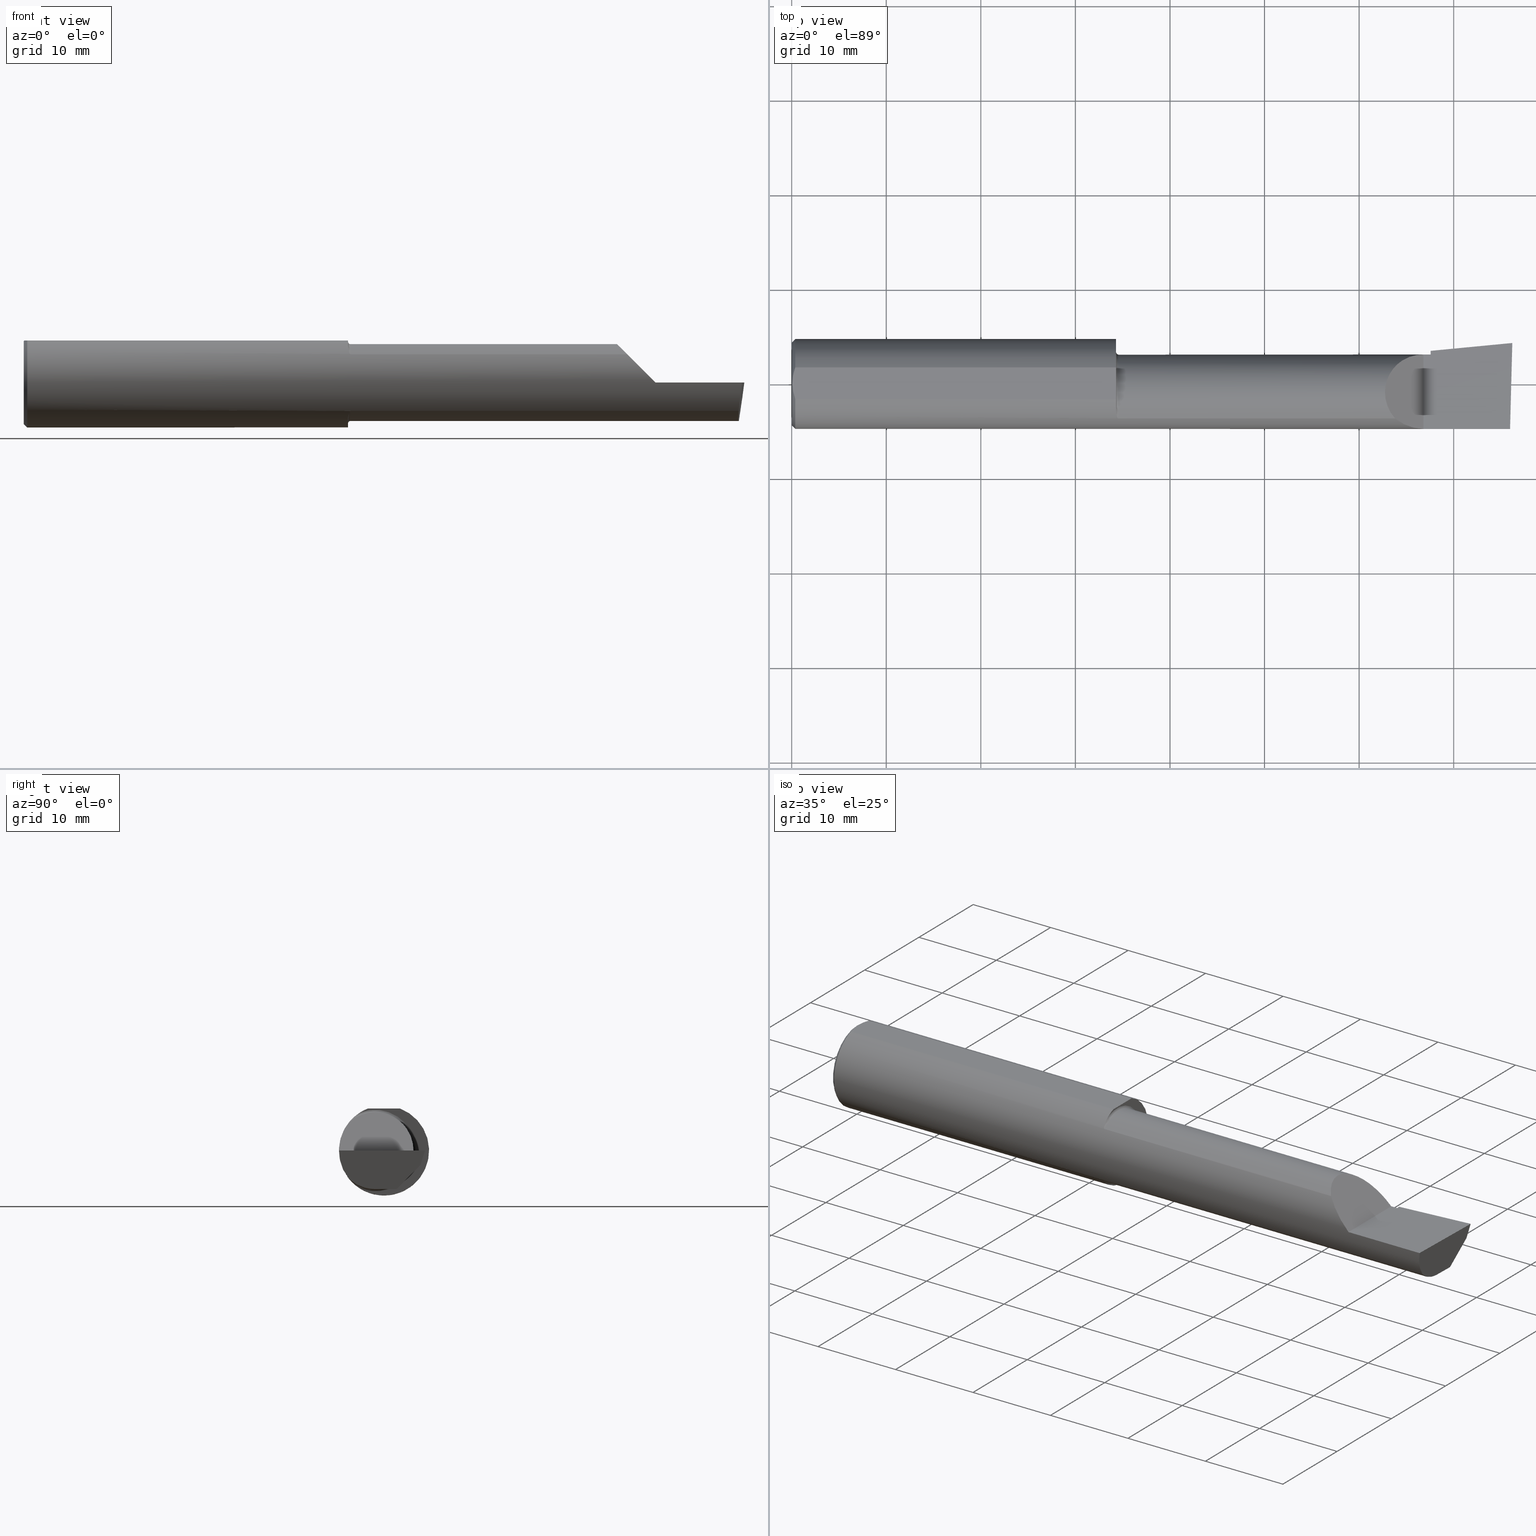
[diagram: canonical four-view strip — front | top / right | iso, engineering-drawing reading convention]
A machine part, canonical four-view strip (front | top / right | iso — engineering-drawing reading convention). The complete STEP part file that produces these views, byte-faithful:
ISO-10303-21;
HEADER;
FILE_DESCRIPTION (( 'STEP AP203' ),
    '1' );
FILE_NAME ('217531-B3601600.STEP',
    '2024-04-26T22:32:55',
    ( '' ),
    ( '' ),
    'SwSTEP 2.0',
    'SolidWorks 2022',
    '' );
FILE_SCHEMA (( 'CONFIG_CONTROL_DESIGN' ));
ENDSEC;

DATA;
#1 = MANIFOLD_SOLID_BREP ( 'Extrude7', #48 ) ;
#2 = EDGE_CURVE ( 'NONE', #203, #40, #349, .T. ) ;
#3 = DIRECTION ( 'NONE',  ( -5.691349986800549142E-18, -1.000000000000000000, 0.000000000000000000 ) ) ;
#4 = DIRECTION ( 'NONE',  ( 0.000000000000000000, -1.000000000000000000, 0.000000000000000000 ) ) ;
#5 = APPROVAL ( #492, 'UNSPECIFIED' ) ;
#6 = DIRECTION ( 'NONE',  ( -5.691349986800549142E-18, -1.000000000000000000, 0.000000000000000000 ) ) ;
#7 = VECTOR ( 'NONE', #227, 39.37007874015748143 ) ;
#8 = ORIENTED_EDGE ( 'NONE', *, *, #449, .T. ) ;
#9 = CARTESIAN_POINT ( 'NONE',  ( 0.000000000000000000, 0.06597272163553677404, 0.1753499999999999226 ) ) ;
#10 = CARTESIAN_POINT ( 'NONE',  ( 0.01499999999999997863, -0.06597272163553657975, 0.1753499999999999781 ) ) ;
#11 = ORIENTED_EDGE ( 'NONE', *, *, #2, .F. ) ;
#12 = DIRECTION ( 'NONE',  ( -0.000000000000000000, 1.000000000000000000, -0.000000000000000000 ) ) ;
#13 = ORIENTED_EDGE ( 'NONE', *, *, #267, .F. ) ;
#14 = ADVANCED_FACE ( 'NONE', ( #616 ), #475, .F. ) ;
#15 = COORDINATED_UNIVERSAL_TIME_OFFSET ( 8, 0, .BEHIND. ) ;
#16 = LINE ( 'NONE', #605, #473 ) ;
#17 = VERTEX_POINT ( 'NONE', #418 ) ;
#18 = AXIS2_PLACEMENT_3D ( 'NONE', #474, #246, #149 ) ;
#19 = CARTESIAN_POINT ( 'NONE',  ( 1.350000000000000311, 0.000000000000000000, 0.000000000000000000 ) ) ;
#20 = VECTOR ( 'NONE', #592, 39.37007874015748143 ) ;
#21 = ORIENTED_EDGE ( 'NONE', *, *, #480, .T. ) ;
#22 = COORDINATED_UNIVERSAL_TIME_OFFSET ( 8, 0, .BEHIND. ) ;
#23 = EDGE_CURVE ( 'NONE', #598, #398, #368, .T. ) ;
#24 = CARTESIAN_POINT ( 'NONE',  ( 0.003000000000000218638, 2.334609607045083916E-17, 0.1753499999999999781 ) ) ;
#25 = VERTEX_POINT ( 'NONE', #329 ) ;
#26 = DATE_AND_TIME ( #345, #85 ) ;
#27 = CARTESIAN_POINT ( 'NONE',  ( 1.350000000000000533, -0.1100056335683315678, 0.1520014681335478957 ) ) ;
#28 = PRODUCT_RELATED_PRODUCT_CATEGORY ( 'detail', '', ( #135 ) ) ;
#29 = ORIENTED_EDGE ( 'NONE', *, *, #156, .T. ) ;
#30 = PRODUCT_DEFINITION_FORMATION_WITH_SPECIFIED_SOURCE ( 'ANY', '', #135, .NOT_KNOWN. ) ;
#31 = CARTESIAN_POINT ( 'NONE',  ( 1.352858161161657025, -0.1330631366558194806, -0.1319833113027350791 ) ) ;
#32 = VERTEX_POINT ( 'NONE', #614 ) ;
#33 = DIRECTION ( 'NONE',  ( 1.000000000000000000, 0.000000000000000000, 0.000000000000000000 ) ) ;
#34 = B_SPLINE_CURVE_WITH_KNOTS ( 'NONE', 3,
 ( #232, #422, #221, #374, #326, #145 ),
 .UNSPECIFIED., .F., .F.,
 ( 4, 2, 4 ),
 ( 0.001779942938356815062, 0.002629978419973711019, 0.003480013901590607410 ),
 .UNSPECIFIED. ) ;
#35 = EDGE_LOOP ( 'NONE', ( #444, #138 ) ) ;
#36 = EDGE_CURVE ( 'NONE', #611, #228, #567, .T. ) ;
#37 = CARTESIAN_POINT ( 'NONE',  ( 2.629999999999999893, 0.1226499999999998147, -1.592040838891560883E-17 ) ) ;
#38 = ORIENTED_EDGE ( 'NONE', *, *, #508, .T. ) ;
#39 = DIRECTION ( 'NONE',  ( 0.000000000000000000, 0.000000000000000000, 1.000000000000000000 ) ) ;
#40 = VERTEX_POINT ( 'NONE', #225 ) ;
#41 = ORIENTED_EDGE ( 'NONE', *, *, #595, .T. ) ;
#42 = CARTESIAN_POINT ( 'NONE',  ( 1.354992410154055804, -0.1399157128067677891, -0.1246181391956572848 ) ) ;
#43 = ADVANCED_FACE ( 'NONE', ( #515 ), #365, .F. ) ;
#44 = CARTESIAN_POINT ( 'NONE',  ( 1.360000000000000320, -0.1454917112299459747, 0.1180346748349057201 ) ) ;
#45 = VERTEX_POINT ( 'NONE', #44 ) ;
#46 = DIRECTION ( 'NONE',  ( -1.000000000000000000, -0.000000000000000000, -0.000000000000000000 ) ) ;
#47 = DIRECTION ( 'NONE',  ( 0.000000000000000000, -1.000000000000000000, 0.000000000000000000 ) ) ;
#48 = CLOSED_SHELL ( 'NONE', ( #536, #120, #487, #304, #331, #14, #43, #529, #414, #518, #93, #439, #259, #539, #53, #87, #583 ) ) ;
#49 = ORIENTED_EDGE ( 'NONE', *, *, #77, .T. ) ;
#50 = DIRECTION ( 'NONE',  ( 0.000000000000000000, 0.2936076258024052921, 0.9559260233253797923 ) ) ;
#51 = APPROVAL_PERSON_ORGANIZATION ( #260, #186, #596 ) ;
#52 = CARTESIAN_POINT ( 'NONE',  ( 2.009999999999999787, -0.1454917112299465021, 0.1180346748349054287 ) ) ;
#53 = ADVANCED_FACE ( 'NONE', ( #416 ), #233, .T. ) ;
#54 = LINE ( 'NONE', #293, #522 ) ;
#55 = LINE ( 'NONE', #624, #525 ) ;
#56 = CC_DESIGN_PERSON_AND_ORGANIZATION_ASSIGNMENT ( #313, #266, ( #30 ) ) ;
#57 = DIRECTION ( 'NONE',  ( 0.000000000000000000, 0.000000000000000000, 1.000000000000000000 ) ) ;
#58 = FACE_OUTER_BOUND ( 'NONE', #308, .T. ) ;
#59 = B_SPLINE_CURVE_WITH_KNOTS ( 'NONE', 3,
 ( #24, #116, #253, #268, #360, #558 ),
 .UNSPECIFIED., .F., .F.,
 ( 4, 2, 4 ),
 ( 0.003480013901590607410, 0.004330767971208085432, 0.005181522040825563453 ),
 .UNSPECIFIED. ) ;
#60 = CARTESIAN_POINT ( 'NONE',  ( 2.659999999999999698, 0.04400172171466197601, -0.1378033461200733056 ) ) ;
#61 = PLANE ( 'NONE',  #547 ) ;
#62 = AXIS2_PLACEMENT_3D ( 'NONE', #296, #342, #50 ) ;
#63 = ORIENTED_EDGE ( 'NONE', *, *, #276, .T. ) ;
#64 = DATE_AND_TIME ( #208, #513 ) ;
#65 = DIRECTION ( 'NONE',  ( 1.000000000000000000, 0.000000000000000000, 0.000000000000000000 ) ) ;
#66 = EDGE_CURVE ( 'NONE', #166, #254, #413, .T. ) ;
#67 = VECTOR ( 'NONE', #483, 39.37007874015748143 ) ;
#68 = PERSON_AND_ORGANIZATION_ROLE ( 'design_supplier' ) ;
#69 = CARTESIAN_POINT ( 'NONE',  ( 1.350000000000000311, -0.06597272163553659363, 0.1753499999999999781 ) ) ;
#70 = ORIENTED_EDGE ( 'NONE', *, *, #194, .T. ) ;
#71 = CARTESIAN_POINT ( 'NONE',  ( 1.360000000000000320, -0.03739999999999999575, 0.000000000000000000 ) ) ;
#72 = ORIENTED_EDGE ( 'NONE', *, *, #338, .F. ) ;
#73 = EDGE_CURVE ( 'NONE', #611, #501, #510, .T. ) ;
#74 = DATE_AND_TIME ( #217, #376 ) ;
#75 = CARTESIAN_POINT ( 'NONE',  ( 0.000000000000000000, 0.000000000000000000, 0.000000000000000000 ) ) ;
#76 = ORIENTED_EDGE ( 'NONE', *, *, #279, .T. ) ;
#77 = EDGE_CURVE ( 'NONE', #305, #344, #424, .T. ) ;
#78 = APPROVAL_DATE_TIME ( #591, #248 ) ;
#79 = CARTESIAN_POINT ( 'NONE',  ( 2.990625440078235275, -0.1873499999999999888, -6.696573958807117964E-17 ) ) ;
#80 = ORIENTED_EDGE ( 'NONE', *, *, #77, .F. ) ;
#81 =( BOUNDED_CURVE ( )  B_SPLINE_CURVE ( 3, ( #608, #178, #568, #37 ),
 .UNSPECIFIED., .F., .T. ) 
 B_SPLINE_CURVE_WITH_KNOTS ( ( 4, 4 ),
 ( 5.541729662751376573, 7.853981633974482790 ),
 .UNSPECIFIED. ) 
 CURVE ( )  GEOMETRIC_REPRESENTATION_ITEM ( )  RATIONAL_B_SPLINE_CURVE ( ( 1.000000000000000000, 0.6019254882129692064, 0.6019254882129692064, 1.000000000000000000 ) ) 
 REPRESENTATION_ITEM ( '' )  );
#82 = AXIS2_PLACEMENT_3D ( 'NONE', #523, #526, #285 ) ;
#83 = CARTESIAN_POINT ( 'NONE',  ( 2.974910817315466360, -0.03674301662998789159, -0.1600499999999999701 ) ) ;
#84 = ORIENTED_EDGE ( 'NONE', *, *, #133, .T. ) ;
#85 = LOCAL_TIME ( 15, 32, 55.00000000000000000, #122 ) ;
#86 = CARTESIAN_POINT ( 'NONE',  ( 1.357567572594822414, -0.1442269357022583354, -0.1195781817710035860 ) ) ;
#87 = ADVANCED_FACE ( 'NONE', ( #281 ), #469, .F. ) ;
#88 = DIRECTION ( 'NONE',  ( 1.000000000000000000, -5.691349986800549142E-18, 0.000000000000000000 ) ) ;
#89 = LINE ( 'NONE', #465, #7 ) ;
#90 = DIRECTION ( 'NONE',  ( 1.000000000000000000, -5.691349986800549142E-18, 0.000000000000000000 ) ) ;
#91 = DIRECTION ( 'NONE',  ( -0.02617694830786920432, -0.9996573249755573709, 0.000000000000000000 ) ) ;
#92 = CARTESIAN_POINT ( 'NONE',  ( 9.109005653874781230E-19, 0.1226499999999999535, 3.563723795045361633E-16 ) ) ;
#93 = ADVANCED_FACE ( 'NONE', ( #58 ), #206, .F. ) ;
#94 = EDGE_LOOP ( 'NONE', ( #550, #11, #222 ) ) ;
#95 =( GEOMETRIC_REPRESENTATION_CONTEXT ( 3 ) GLOBAL_UNCERTAINTY_ASSIGNED_CONTEXT ( ( #580 ) ) GLOBAL_UNIT_ASSIGNED_CONTEXT ( ( #241, #576, #427 ) ) REPRESENTATION_CONTEXT ( 'NONE', 'WORKASPACE' ) );
#96 = CARTESIAN_POINT ( 'NONE',  ( 1.350000000000000311, -0.1013606951871662831, -0.1575627873933891920 ) ) ;
#97 = CARTESIAN_POINT ( 'NONE',  ( 2.629999999999999893, -0.1873499999999999888, -1.592040838891560883E-17 ) ) ;
#98 = LINE ( 'NONE', #151, #330 ) ;
#99 = VERTEX_POINT ( 'NONE', #10 ) ;
#100 =( LENGTH_UNIT ( ) NAMED_UNIT ( * ) SI_UNIT ( $, .METRE. ) );
#101 = CARTESIAN_POINT ( 'NONE',  ( 1.350000000000000311, -0.1013606951871662831, -0.1575627873933891920 ) ) ;
#102 = APPLICATION_CONTEXT ( 'configuration controlled 3d designs of mechanical parts and assemblies' ) ;
#103 = DIRECTION ( 'NONE',  ( -3.962974135542377331E-18, -0.6963153109074924352, -0.7177360153954949196 ) ) ;
#104 = AXIS2_PLACEMENT_3D ( 'NONE', #626, #478, #622 ) ;
#105 = CARTESIAN_POINT ( 'NONE',  ( 1.350000000000000311, -0.03739999999999999575, 0.000000000000000000 ) ) ;
#106 = CARTESIAN_POINT ( 'NONE',  ( 3.011712141217646188, 0.1533490680423130192, -0.06000000000000001166 ) ) ;
#107 = DIRECTION ( 'NONE',  ( -1.000000000000000000, -0.000000000000000000, -0.000000000000000000 ) ) ;
#108 = CARTESIAN_POINT ( 'NONE',  ( 2.629999999999999893, -0.1873499999999999888, -1.592040838891560883E-17 ) ) ;
#109 = EDGE_CURVE ( 'NONE', #113, #598, #252, .T. ) ;
#110 = PERSON_AND_ORGANIZATION_ROLE ( 'classification_officer' ) ;
#111 = CARTESIAN_POINT ( 'NONE',  ( 2.659999999999999698, 0.02241901528670508376, -0.1600499999999999701 ) ) ;
#112 = APPROVAL_PERSON_ORGANIZATION ( #114, #248, #554 ) ;
#113 = VERTEX_POINT ( 'NONE', #150 ) ;
#114 = PERSON_AND_ORGANIZATION ( #295, #247 ) ;
#115 = AXIS2_PLACEMENT_3D ( 'NONE', #19, #400, #599 ) ;
#116 = CARTESIAN_POINT ( 'NONE',  ( 0.003000000000000172234, 0.01127363201155565098, 0.1753499999999999781 ) ) ;
#117 = VECTOR ( 'NONE', #383, 39.37007874015748143 ) ;
#118 = ORIENTED_EDGE ( 'NONE', *, *, #595, .F. ) ;
#119 = CYLINDRICAL_SURFACE ( 'NONE', #179, 0.1873499999999999888 ) ;
#120 = ADVANCED_FACE ( 'NONE', ( #154 ), #61, .T. ) ;
#121 = VERTEX_POINT ( 'NONE', #101 ) ;
#122 = COORDINATED_UNIVERSAL_TIME_OFFSET ( 8, 0, .BEHIND. ) ;
#123 = LINE ( 'NONE', #283, #625 ) ;
#124 = ORIENTED_EDGE ( 'NONE', *, *, #109, .F. ) ;
#125 = AXIS2_PLACEMENT_3D ( 'NONE', #189, #460, #182 ) ;
#126 = CC_DESIGN_DATE_AND_TIME_ASSIGNMENT ( #26, #157, ( #191 ) ) ;
#127 = APPROVAL_STATUS ( 'not_yet_approved' ) ;
#128 = DIRECTION ( 'NONE',  ( 1.000000000000000000, -5.691349986800549142E-18, 0.000000000000000000 ) ) ;
#129 = ORIENTED_EDGE ( 'NONE', *, *, #324, .F. ) ;
#130 = CARTESIAN_POINT ( 'NONE',  ( 1.356216587669451412, -0.1423502170013163648, 0.1218111458006551073 ) ) ;
#131 = ORIENTED_EDGE ( 'NONE', *, *, #312, .F. ) ;
#132 = AXIS2_PLACEMENT_3D ( 'NONE', #136, #561, #47 ) ;
#133 = EDGE_CURVE ( 'NONE', #254, #498, #176, .T. ) ;
#134 = FACE_OUTER_BOUND ( 'NONE', #372, .T. ) ;
#135 = PRODUCT ( '217531-B3601600', '217531-B3601600', '', ( #263 ) ) ;
#136 = CARTESIAN_POINT ( 'NONE',  ( 2.659999999999999698, -0.03740000000000000269, 0.000000000000000000 ) ) ;
#137 = DIRECTION ( 'NONE',  ( -5.691349986800549142E-18, -1.000000000000000000, 1.438723400918613551E-16 ) ) ;
#138 = ORIENTED_EDGE ( 'NONE', *, *, #219, .T. ) ;
#139 = CARTESIAN_POINT ( 'NONE',  ( 3.011712141217646188, 0.1533490680423130192, -0.06000000000000001166 ) ) ;
#140 = DIRECTION ( 'NONE',  ( 1.000000000000000000, 0.000000000000000000, 0.000000000000000000 ) ) ;
#141 = ORIENTED_EDGE ( 'NONE', *, *, #404, .F. ) ;
#142 = DIMENSIONAL_EXPONENTS ( 1.000000000000000000, 0.000000000000000000, 0.000000000000000000, 0.000000000000000000, 0.000000000000000000, 0.000000000000000000, 0.000000000000000000 ) ;
#143 = ORIENTED_EDGE ( 'NONE', *, *, #276, .F. ) ;
#144 = CIRCLE ( 'NONE', #544, 0.1873499999999999888 ) ;
#145 = CARTESIAN_POINT ( 'NONE',  ( 0.003000000000000218638, 2.334609607045083916E-17, 0.1753499999999999781 ) ) ;
#146 = ORIENTED_EDGE ( 'NONE', *, *, #404, .T. ) ;
#147 = EDGE_LOOP ( 'NONE', ( #504, #118, #129, #559, #250 ) ) ;
#148 = VECTOR ( 'NONE', #542, 39.37007874015748143 ) ;
#149 = DIRECTION ( 'NONE',  ( 0.000000000000000000, 0.000000000000000000, -1.000000000000000000 ) ) ;
#150 = CARTESIAN_POINT ( 'NONE',  ( 0.000000000000000000, 0.000000000000000000, -0.1723499999999996424 ) ) ;
#151 = CARTESIAN_POINT ( 'NONE',  ( 2.992483720199183850, 0.1538199878950237132, -0.05760614975163640822 ) ) ;
#152 = EDGE_CURVE ( 'NONE', #305, #99, #55, .T. ) ;
#153 = CARTESIAN_POINT ( 'NONE',  ( 2.629999999999999893, 0.1226499999999998147, -1.592040838891560883E-17 ) ) ;
#154 = FACE_OUTER_BOUND ( 'NONE', #216, .T. ) ;
#155 = CARTESIAN_POINT ( 'NONE',  ( 2.988992440003207296, -0.2497117568972559432, -6.673801155297139976E-17 ) ) ;
#156 = EDGE_CURVE ( 'NONE', #45, #40, #291, .T. ) ;
#157 = DATE_TIME_ROLE ( 'classification_date' ) ;
#158 = DIRECTION ( 'NONE',  ( -1.000000000000000000, -0.000000000000000000, -0.000000000000000000 ) ) ;
#159 = PERSON_AND_ORGANIZATION ( #295, #247 ) ;
#160 = CARTESIAN_POINT ( 'NONE',  ( 2.659999999999999698, -0.03740000000000000269, -0.1600499999999999701 ) ) ;
#161 = APPROVAL_PERSON_ORGANIZATION ( #298, #5, #302 ) ;
#162 = EDGE_LOOP ( 'NONE', ( #300, #520, #131, #511 ) ) ;
#163 = PERSON_AND_ORGANIZATION ( #295, #247 ) ;
#164 = EDGE_CURVE ( 'NONE', #278, #395, #236, .T. ) ;
#165 = CARTESIAN_POINT ( 'NONE',  ( 1.352845212421890819, -0.1330145888620359040, 0.1320338710448779596 ) ) ;
#166 = VERTEX_POINT ( 'NONE', #153 ) ;
#167 = CARTESIAN_POINT ( 'NONE',  ( 1.359343186359709632, -0.1454917112302220594, 0.1180346748345674213 ) ) ;
#168 = CC_DESIGN_DATE_AND_TIME_ASSIGNMENT ( #407, #505, ( #566 ) ) ;
#169 = ORIENTED_EDGE ( 'NONE', *, *, #243, .F. ) ;
#170 = CALENDAR_DATE ( 2024, 26, 4 ) ;
#171 = DIRECTION ( 'NONE',  ( -1.000000000000000000, 5.691349986800549142E-18, -0.000000000000000000 ) ) ;
#172 = ORIENTED_EDGE ( 'NONE', *, *, #133, .F. ) ;
#173 = CC_DESIGN_APPROVAL ( #186, ( #566 ) ) ;
#174 = CARTESIAN_POINT ( 'NONE',  ( 1.360000000000000320, -0.1454917112299459747, 0.1180346748349057201 ) ) ;
#175 = ORIENTED_EDGE ( 'NONE', *, *, #73, .T. ) ;
#176 = CIRCLE ( 'NONE', #275, 0.1600500000000000533 ) ;
#177 = EDGE_CURVE ( 'NONE', #113, #25, #577, .T. ) ;
#178 = CARTESIAN_POINT ( 'NONE',  ( 2.402393788885674120, -0.02584108761840397950, 0.2276062111143233868 ) ) ;
#179 = AXIS2_PLACEMENT_3D ( 'NONE', #75, #307, #500 ) ;
#180 = DIRECTION ( 'NONE',  ( -0.06894566448119623936, 0.7160281025913035613, -0.6946583704589934793 ) ) ;
#181 = VECTOR ( 'NONE', #464, 39.37007874015748143 ) ;
#182 = DIRECTION ( 'NONE',  ( 5.691349986800549142E-18, 1.000000000000000000, 0.000000000000000000 ) ) ;
#183 = CARTESIAN_POINT ( 'NONE',  ( 0.01499999999999999424, 0.000000000000000000, 0.000000000000000000 ) ) ;
#184 = ORIENTED_EDGE ( 'NONE', *, *, #508, .F. ) ;
#185 = CARTESIAN_POINT ( 'NONE',  ( 0.01499999999999999424, 0.000000000000000000, 0.000000000000000000 ) ) ;
#186 = APPROVAL ( #453, 'UNSPECIFIED' ) ;
#187 = CARTESIAN_POINT ( 'NONE',  ( 3.000000000000000444, 0.2373500000000000332, 0.1753499999999999504 ) ) ;
#188 = ORIENTED_EDGE ( 'NONE', *, *, #243, .T. ) ;
#189 = CARTESIAN_POINT ( 'NONE',  ( 1.350000000000000311, 0.1326499999999998791, 0.000000000000000000 ) ) ;
#190 = ORIENTED_EDGE ( 'NONE', *, *, #292, .T. ) ;
#191 = SECURITY_CLASSIFICATION ( '', '', #499 ) ;
#192 = FACE_OUTER_BOUND ( 'NONE', #355, .T. ) ;
#193 = DIRECTION ( 'NONE',  ( -1.000000000000000000, -0.000000000000000000, -0.000000000000000000 ) ) ;
#194 = EDGE_CURVE ( 'NONE', #387, #25, #607, .T. ) ;
#195 = VECTOR ( 'NONE', #299, 39.37007874015748143 ) ;
#196 = CARTESIAN_POINT ( 'NONE',  ( 2.973833329693937433, -0.07789060880782650020, -0.1600499999999999423 ) ) ;
#197 = CARTESIAN_POINT ( 'NONE',  ( 2.659999999999999698, 0.1379117236128365731, 0.000000000000000000 ) ) ;
#198 = VECTOR ( 'NONE', #46, 39.37007874015748143 ) ;
#199 = FACE_OUTER_BOUND ( 'NONE', #231, .T. ) ;
#200 = ORIENTED_EDGE ( 'NONE', *, *, #549, .F. ) ;
#201 = DIRECTION ( 'NONE',  ( 1.000000000000000000, 0.000000000000000000, 0.000000000000000000 ) ) ;
#202 = CARTESIAN_POINT ( 'NONE',  ( 0.01499999999999999424, 0.000000000000000000, -0.1873499999999999888 ) ) ;
#203 = VERTEX_POINT ( 'NONE', #108 ) ;
#204 =( BOUNDED_CURVE ( )  B_SPLINE_CURVE ( 3, ( #597, #213, #350, #261 ),
 .UNSPECIFIED., .F., .T. ) 
 B_SPLINE_CURVE_WITH_KNOTS ( ( 4, 4 ),
 ( 0.6791649766275701383, 1.360746882514768163 ),
 .UNSPECIFIED. ) 
 CURVE ( )  GEOMETRIC_REPRESENTATION_ITEM ( )  RATIONAL_B_SPLINE_CURVE ( ( 1.000000000000000000, 0.9616603987079548332, 0.9616603987079548332, 1.000000000000000000 ) ) 
 REPRESENTATION_ITEM ( '' )  );
#205 = LINE ( 'NONE', #394, #20 ) ;
#206 = TOROIDAL_SURFACE ( 'NONE', #235, 0.1700499999999998679, 0.009999999999999807654 ) ;
#207 = ORIENTED_EDGE ( 'NONE', *, *, #219, .F. ) ;
#208 = CALENDAR_DATE ( 2024, 26, 4 ) ;
#209 = CARTESIAN_POINT ( 'NONE',  ( 2.659999999999999698, -0.03740000000000000269, 0.000000000000000000 ) ) ;
#210 = VERTEX_POINT ( 'NONE', #432 ) ;
#211 = CC_DESIGN_PERSON_AND_ORGANIZATION_ASSIGNMENT ( #159, #68, ( #30 ) ) ;
#212 = APPROVAL_DATE_TIME ( #74, #186 ) ;
#213 = CARTESIAN_POINT ( 'NONE',  ( 2.980648201915111262, -0.1728409665178086418, -0.08432347972837196670 ) ) ;
#214 = EDGE_LOOP ( 'NONE', ( #377, #63, #359, #169, #421, #348 ) ) ;
#215 = CARTESIAN_POINT ( 'NONE',  ( 1.358780002058963987, -0.1452129146512408098, 0.1183784924451703191 ) ) ;
#216 = EDGE_LOOP ( 'NONE', ( #188, #284, #546, #172 ) ) ;
#217 = CALENDAR_DATE ( 2024, 26, 4 ) ;
#218 = CARTESIAN_POINT ( 'NONE',  ( 1.356674049009441552, -0.1431412424162801234, 0.1208797671938530438 ) ) ;
#219 = EDGE_CURVE ( 'NONE', #498, #611, #346, .T. ) ;
#220 = ORIENTED_EDGE ( 'NONE', *, *, #557, .T. ) ;
#221 = CARTESIAN_POINT ( 'NONE',  ( 0.008227791779583793277, -0.04447712204611815184, 0.1753499999999999781 ) ) ;
#222 = ORIENTED_EDGE ( 'NONE', *, *, #354, .T. ) ;
#223 = VECTOR ( 'NONE', #389, 39.37007874015748143 ) ;
#224 = CARTESIAN_POINT ( 'NONE',  ( 2.659999999999999698, 0.1028057716897401719, -0.07719031082256661014 ) ) ;
#225 = CARTESIAN_POINT ( 'NONE',  ( 2.511965325165094853, -0.1454917112299475568, 0.1180346748349042352 ) ) ;
#226 = EDGE_CURVE ( 'NONE', #32, #210, #485, .T. ) ;
#227 = DIRECTION ( 'NONE',  ( -1.000000000000000000, 5.691349986800548372E-18, -0.000000000000000000 ) ) ;
#228 = VERTEX_POINT ( 'NONE', #111 ) ;
#229 = CARTESIAN_POINT ( 'NONE',  ( 2.629999999999999893, -0.2500000000000000555, -1.592040838891560883E-17 ) ) ;
#230 = ORIENTED_EDGE ( 'NONE', *, *, #338, .T. ) ;
#231 = EDGE_LOOP ( 'NONE', ( #258, #517, #72, #29, #490, #470, #84, #237, #175, #184 ) ) ;
#232 = CARTESIAN_POINT ( 'NONE',  ( 0.01499999999999997863, -0.06597272163553657975, 0.1753499999999999781 ) ) ;
#233 = PLANE ( 'NONE',  #540 ) ;
#234 = EDGE_LOOP ( 'NONE', ( #462, #430 ) ) ;
#235 = AXIS2_PLACEMENT_3D ( 'NONE', #479, #436, #6 ) ;
#236 = LINE ( 'NONE', #386, #195 ) ;
#237 = ORIENTED_EDGE ( 'NONE', *, *, #347, .F. ) ;
#238 = CC_DESIGN_APPROVAL ( #5, ( #191 ) ) ;
#239 = DIRECTION ( 'NONE',  ( 0.1053106618241816950, 0.6976485211320171409, 0.7086580314005213044 ) ) ;
#240 = CARTESIAN_POINT ( 'NONE',  ( 2.977223734188810589, -0.1454917112299465021, -0.1180346748349054287 ) ) ;
#241 =( CONVERSION_BASED_UNIT ( 'INCH', #337 ) LENGTH_UNIT ( ) NAMED_UNIT ( #142 ) );
#242 = CARTESIAN_POINT ( 'NONE',  ( 2.659999999999999698, 0.1226500000000000368, 3.563723795045364098E-16 ) ) ;
#243 = EDGE_CURVE ( 'NONE', #254, #574, #532, .T. ) ;
#244 = LINE ( 'NONE', #289, #198 ) ;
#245 = CARTESIAN_POINT ( 'NONE',  ( 0.000000000000000000, 0.000000000000000000, 0.000000000000000000 ) ) ;
#246 = DIRECTION ( 'NONE',  ( 1.000000000000000000, 0.000000000000000000, 0.000000000000000000 ) ) ;
#247 = ORGANIZATION ( 'UNSPECIFIED', 'UNSPECIFIED', '' ) ;
#248 = APPROVAL ( #127, 'UNSPECIFIED' ) ;
#249 = DIRECTION ( 'NONE',  ( -1.000000000000000000, 5.691349986800549142E-18, 0.000000000000000000 ) ) ;
#250 = ORIENTED_EDGE ( 'NONE', *, *, #152, .F. ) ;
#251 = APPROVAL_DATE_TIME ( #64, #5 ) ;
#252 = CIRCLE ( 'NONE', #441, 0.1723499999999996424 ) ;
#253 = CARTESIAN_POINT ( 'NONE',  ( 0.004115035183746283340, 0.02255629470626750385, 0.1753499999999999781 ) ) ;
#254 = VERTEX_POINT ( 'NONE', #242 ) ;
#255 = CIRCLE ( 'NONE', #426, 0.1600499999999998868 ) ;
#256 = PERSON_AND_ORGANIZATION ( #295, #247 ) ;
#257 = CARTESIAN_POINT ( 'NONE',  ( 1.354402240695039117, -0.1382337250035442500, 0.1264828452200237596 ) ) ;
#258 = ORIENTED_EDGE ( 'NONE', *, *, #226, .F. ) ;
#259 = ADVANCED_FACE ( 'NONE', ( #199 ), #435, .T. ) ;
#260 = PERSON_AND_ORGANIZATION ( #295, #247 ) ;
#261 = CARTESIAN_POINT ( 'NONE',  ( 2.990625440078235275, -0.1873499999999999888, -6.696573958807117964E-17 ) ) ;
#262 = ORIENTED_EDGE ( 'NONE', *, *, #36, .T. ) ;
#263 = MECHANICAL_CONTEXT ( 'NONE', #102, 'mechanical' ) ;
#264 = FACE_OUTER_BOUND ( 'NONE', #448, .T. ) ;
#265 = ORIENTED_EDGE ( 'NONE', *, *, #73, .F. ) ;
#266 = PERSON_AND_ORGANIZATION_ROLE ( 'creator' ) ;
#267 = EDGE_CURVE ( 'NONE', #278, #458, #585, .T. ) ;
#268 = CARTESIAN_POINT ( 'NONE',  ( 0.008244775919947433529, 0.04453482769755864185, 0.1753499999999999504 ) ) ;
#269 = ORIENTED_EDGE ( 'NONE', *, *, #563, .F. ) ;
#270 = CARTESIAN_POINT ( 'NONE',  ( 1.360000000000000320, -0.1454917112299460580, -0.1180346748349056646 ) ) ;
#271 = ORIENTED_EDGE ( 'NONE', *, *, #371, .F. ) ;
#272 = VECTOR ( 'NONE', #103, 39.37007874015748143 ) ;
#273 = PLANE ( 'NONE',  #481 ) ;
#274 = DIRECTION ( 'NONE',  ( 0.7071067811865390240, 8.659560562355036396E-17, 0.7071067811865560104 ) ) ;
#275 = AXIS2_PLACEMENT_3D ( 'NONE', #537, #438, #530 ) ;
#276 = EDGE_CURVE ( 'NONE', #335, #395, #297, .T. ) ;
#277 = DIRECTION ( 'NONE',  ( -1.000000000000000000, 5.691349986800549142E-18, 0.000000000000000000 ) ) ;
#278 = VERTEX_POINT ( 'NONE', #601 ) ;
#279 = EDGE_CURVE ( 'NONE', #344, #45, #373, .T. ) ;
#280 = FACE_OUTER_BOUND ( 'NONE', #94, .T. ) ;
#281 = FACE_OUTER_BOUND ( 'NONE', #35, .T. ) ;
#282 = VECTOR ( 'NONE', #201, 39.37007874015748143 ) ;
#283 = CARTESIAN_POINT ( 'NONE',  ( 0.8393181374772692438, -0.03739999999999999575, 2.375616991505620205E-16 ) ) ;
#284 = ORIENTED_EDGE ( 'NONE', *, *, #312, .T. ) ;
#285 = DIRECTION ( 'NONE',  ( -1.000000000000000000, 0.000000000000000000, 1.415561931153809475E-16 ) ) ;
#286 = ORIENTED_EDGE ( 'NONE', *, *, #620, .T. ) ;
#287 = CARTESIAN_POINT ( 'NONE',  ( 2.659999999999999698, 0.1010446066476776428, -0.07900565447499383054 ) ) ;
#288 = VECTOR ( 'NONE', #137, 39.37007874015748143 ) ;
#289 = CARTESIAN_POINT ( 'NONE',  ( 5.044671737413194975E-32, -0.1873499999999999610, 3.563723795045361633E-16 ) ) ;
#290 = APPLICATION_CONTEXT ( 'configuration controlled 3d designs of mechanical parts and assemblies' ) ;
#291 = LINE ( 'NONE', #52, #223 ) ;
#292 = EDGE_CURVE ( 'NONE', #501, #228, #303, .T. ) ;
#293 = CARTESIAN_POINT ( 'NONE',  ( 2.991169618080469661, 0.05430702260361129630, -0.1600499999999999701 ) ) ;
#294 = DIRECTION ( 'NONE',  ( -0.9953961983671800740, -0.09584575252021031166, 0.000000000000000000 ) ) ;
#295 = PERSON ( 'UNSPECIFIED', 'UNSPECIFIED', 'UNSPECIFIED', ('UNSPECIFIED'), ('UNSPECIFIED'), ('UNSPECIFIED') ) ;
#296 = CARTESIAN_POINT ( 'NONE',  ( 3.009953961983671267, 0.1716084575252020128, -6.829619984160658046E-17 ) ) ;
#297 = LINE ( 'NONE', #155, #390 ) ;
#298 = PERSON_AND_ORGANIZATION ( #295, #247 ) ;
#299 = DIRECTION ( 'NONE',  ( 0.1240019227989375278, 0.3022330132596638963, 0.9451342385281309433 ) ) ;
#300 = ORIENTED_EDGE ( 'NONE', *, *, #164, .F. ) ;
#301 = B_SPLINE_CURVE_WITH_KNOTS ( 'NONE', 3,
 ( #270, #471, #417, #572, #86, #521, #467, #42, #415, #31, #411, #320, #419, #96 ),
 .UNSPECIFIED., .F., .F.,
 ( 4, 2, 2, 2, 2, 2, 4 ),
 ( 1.967643395654746293E-07, 5.001319782656384310E-05, 9.982963131356221390E-05, 0.0001994624982875588606, 0.0003987282322355520186, 0.0007972597001315340519, 0.001594322635923497468 ),
 .UNSPECIFIED. ) ;
#302 = APPROVAL_ROLE ( '' ) ;
#303 = LINE ( 'NONE', #160, #588 ) ;
#304 = ADVANCED_FACE ( 'NONE', ( #317 ), #409, .F. ) ;
#305 = VERTEX_POINT ( 'NONE', #69 ) ;
#306 = CALENDAR_DATE ( 2024, 26, 4 ) ;
#307 = DIRECTION ( 'NONE',  ( -1.000000000000000000, -0.000000000000000000, -0.000000000000000000 ) ) ;
#308 = EDGE_LOOP ( 'NONE', ( #76, #230, #146, #527 ) ) ;
#309 = COORDINATED_UNIVERSAL_TIME_OFFSET ( 8, 0, .BEHIND. ) ;
#310 = CARTESIAN_POINT ( 'NONE',  ( 0.01499999999999999424, 0.06597272163553677404, 0.1753499999999999226 ) ) ;
#311 = ORIENTED_EDGE ( 'NONE', *, *, #177, .F. ) ;
#312 = EDGE_CURVE ( 'NONE', #574, #458, #16, .T. ) ;
#313 = PERSON_AND_ORGANIZATION ( #295, #247 ) ;
#314 = LINE ( 'NONE', #397, #406 ) ;
#315 = PRODUCT_DEFINITION_SHAPE ( 'NONE', 'NONE',  #566 ) ;
#316 = ORIENTED_EDGE ( 'NONE', *, *, #279, .F. ) ;
#317 = FACE_OUTER_BOUND ( 'NONE', #603, .T. ) ;
#318 = ORIENTED_EDGE ( 'NONE', *, *, #23, .T. ) ;
#319 = VECTOR ( 'NONE', #90, 39.37007874015748143 ) ;
#320 = CARTESIAN_POINT ( 'NONE',  ( 1.350483388365424364, -0.1180160148311104606, -0.1458664675357414509 ) ) ;
#321 = CARTESIAN_POINT ( 'NONE',  ( 2.545676520271628718, -0.1728409665178091414, 0.08432347972837085648 ) ) ;
#322 = CC_DESIGN_SECURITY_CLASSIFICATION ( #191, ( #30 ) ) ;
#323 = PLANE ( 'NONE',  #125 ) ;
#324 = EDGE_CURVE ( 'NONE', #398, #387, #59, .T. ) ;
#325 = ORIENTED_EDGE ( 'NONE', *, *, #461, .F. ) ;
#326 = CARTESIAN_POINT ( 'NONE',  ( 0.003000000000000171800, -0.01126410975715119375, 0.1753500000000000059 ) ) ;
#327 = DIRECTION ( 'NONE',  ( 0.000000000000000000, 0.6963153109074924352, 0.7177360153954948085 ) ) ;
#328 = PLANE ( 'NONE',  #357 ) ;
#329 = CARTESIAN_POINT ( 'NONE',  ( 0.01499999999999999424, 0.000000000000000000, -0.1873499999999999888 ) ) ;
#330 = VECTOR ( 'NONE', #239, 39.37007874015748143 ) ;
#331 = ADVANCED_FACE ( 'NONE', ( #264 ), #119, .T. ) ;
#332 = PLANE ( 'NONE',  #104 ) ;
#333 = CARTESIAN_POINT ( 'NONE',  ( 2.659999999999999698, 0.1010446066476776428, -0.07900565447499383054 ) ) ;
#334 = VECTOR ( 'NONE', #294, 39.37007874015748854 ) ;
#335 = VERTEX_POINT ( 'NONE', #79 ) ;
#336 = DIRECTION ( 'NONE',  ( -5.691349986800549142E-18, -1.000000000000000000, 0.000000000000000000 ) ) ;
#337 = LENGTH_MEASURE_WITH_UNIT ( LENGTH_MEASURE( 0.02539999999999999897 ), #100 );
#338 = EDGE_CURVE ( 'NONE', #45, #606, #255, .T. ) ;
#339 = DIRECTION ( 'NONE',  ( -0.7071067811865516806, 0.000000000000000000, 0.7071067811865434649 ) ) ;
#340 = CARTESIAN_POINT ( 'NONE',  ( 2.659999999999999698, -0.2500000000000000555, -2.016709418237695393E-17 ) ) ;
#341 = CC_DESIGN_PERSON_AND_ORGANIZATION_ASSIGNMENT ( #163, #110, ( #191 ) ) ;
#342 = DIRECTION ( 'NONE',  ( -0.09165774897393344500, 0.9519021185660616613, -0.2923717047227296084 ) ) ;
#343 = DIRECTION ( 'NONE',  ( 0.02617694830786920085, 0.9996573249755573709, -3.650474420803249347E-18 ) ) ;
#344 = VERTEX_POINT ( 'NONE', #358 ) ;
#345 = CALENDAR_DATE ( 2024, 26, 4 ) ;
#346 = LINE ( 'NONE', #287, #148 ) ;
#347 = EDGE_CURVE ( 'NONE', #611, #498, #570, .T. ) ;
#348 = ORIENTED_EDGE ( 'NONE', *, *, #354, .F. ) ;
#349 =( BOUNDED_CURVE ( )  B_SPLINE_CURVE ( 3, ( #97, #619, #321, #370 ),
 .UNSPECIFIED., .F., .T. ) 
 B_SPLINE_CURVE_WITH_KNOTS ( ( 4, 4 ),
 ( 4.712388980384689674, 5.393970886271879372 ),
 .UNSPECIFIED. ) 
 CURVE ( )  GEOMETRIC_REPRESENTATION_ITEM ( )  RATIONAL_B_SPLINE_CURVE ( ( 1.000000000000000000, 0.9616603987079558324, 0.9616603987079558324, 1.000000000000000000 ) ) 
 REPRESENTATION_ITEM ( '' )  );
#350 = CARTESIAN_POINT ( 'NONE',  ( 2.985293537526807039, -0.1873499999999999610, -0.04340998088356440299 ) ) ;
#351 = ORIENTED_EDGE ( 'NONE', *, *, #392, .F. ) ;
#352 = APPLICATION_PROTOCOL_DEFINITION ( 'international standard', 'config_control_design', 1994, #290 ) ;
#353 = CARTESIAN_POINT ( 'NONE',  ( 3.000000000000015099, 0.1706500000000298611, 9.270328747797009695E-14 ) ) ;
#354 = EDGE_CURVE ( 'NONE', #203, #166, #314, .T. ) ;
#355 = EDGE_LOOP ( 'NONE', ( #593, #363, #286, #600, #143, #361 ) ) ;
#356 = PERSON_AND_ORGANIZATION_ROLE ( 'design_owner' ) ;
#357 = AXIS2_PLACEMENT_3D ( 'NONE', #229, #382, #339 ) ;
#358 = CARTESIAN_POINT ( 'NONE',  ( 1.350000000000000311, -0.1013606951871662831, 0.1575627873933891920 ) ) ;
#359 = ORIENTED_EDGE ( 'NONE', *, *, #399, .F. ) ;
#360 = CARTESIAN_POINT ( 'NONE',  ( 0.01125230581755091823, 0.05532998191409932431, 0.1753500000000000059 ) ) ;
#361 = ORIENTED_EDGE ( 'NONE', *, *, #381, .F. ) ;
#362 = FACE_OUTER_BOUND ( 'NONE', #234, .T. ) ;
#363 = ORIENTED_EDGE ( 'NONE', *, *, #480, .F. ) ;
#364 = CARTESIAN_POINT ( 'NONE',  ( 2.659999999999999698, -0.03740000000000000269, -0.1600499999999999701 ) ) ;
#365 = PLANE ( 'NONE',  #82 ) ;
#366 = CIRCLE ( 'NONE', #623, 0.1723499999999996424 ) ;
#367 = DIRECTION ( 'NONE',  ( 0.000000000000000000, 0.000000000000000000, -1.000000000000000000 ) ) ;
#368 = LINE ( 'NONE', #423, #446 ) ;
#369 = CARTESIAN_POINT ( 'NONE',  ( 2.659999999999999698, 0.1379117236128365731, 0.000000000000000000 ) ) ;
#370 = CARTESIAN_POINT ( 'NONE',  ( 2.511965325165094853, -0.1454917112299475568, 0.1180346748349042352 ) ) ;
#371 = EDGE_CURVE ( 'NONE', #32, #606, #205, .T. ) ;
#372 = EDGE_LOOP ( 'NONE', ( #265, #262, #590 ) ) ;
#373 = B_SPLINE_CURVE_WITH_KNOTS ( 'NONE', 3,
 ( #503, #27, #555, #451, #165, #257, #457, #130, #218, #506, #548, #215, #167, #174 ),
 .UNSPECIFIED., .F., .F.,
 ( 4, 2, 2, 2, 2, 2, 4 ),
 ( 0.0006605532644857158020, 0.001446564801351194179, 0.001839570569783934018, 0.002036073454000306322, 0.002134324896108489873, 0.002183450617162586635, 0.002232576338216682964 ),
 .UNSPECIFIED. ) ;
#374 = CARTESIAN_POINT ( 'NONE',  ( 0.004093196532652217806, -0.02240707710020815174, 0.1753499999999999504 ) ) ;
#375 = DIRECTION ( 'NONE',  ( 0.000000000000000000, 1.000000000000000000, -1.438723400918613551E-16 ) ) ;
#376 = LOCAL_TIME ( 15, 32, 55.00000000000000000, #309 ) ;
#377 = ORIENTED_EDGE ( 'NONE', *, *, #557, .F. ) ;
#378 = CARTESIAN_POINT ( 'NONE',  ( 1.360000000000000320, -0.1454917112299460580, -0.1180346748349056646 ) ) ;
#379 = CIRCLE ( 'NONE', #115, 0.1873499999999999888 ) ;
#380 = DIRECTION ( 'NONE',  ( -1.000000000000000000, -0.000000000000000000, -0.000000000000000000 ) ) ;
#381 = EDGE_CURVE ( 'NONE', #32, #335, #204, .T. ) ;
#382 = DIRECTION ( 'NONE',  ( -0.7071067811865434649, 0.000000000000000000, -0.7071067811865516806 ) ) ;
#383 = DIRECTION ( 'NONE',  ( 0.7071067811865390240, 0.000000000000000000, -0.7071067811865560104 ) ) ;
#384 = CC_DESIGN_PERSON_AND_ORGANIZATION_ASSIGNMENT ( #442, #450, ( #566 ) ) ;
#385 = CARTESIAN_POINT ( 'NONE',  ( 0.000000000000000000, -0.03739999999999998881, 0.000000000000000000 ) ) ;
#386 = CARTESIAN_POINT ( 'NONE',  ( 3.000188977433814408, 0.1711105994646681949, 0.001440373173037210429 ) ) ;
#387 = VERTEX_POINT ( 'NONE', #310 ) ;
#388 = PLANE ( 'NONE',  #62 ) ;
#389 = DIRECTION ( 'NONE',  ( 1.000000000000000000, -5.691349986800549142E-18, 0.000000000000000000 ) ) ;
#390 = VECTOR ( 'NONE', #343, 39.37007874015748854 ) ;
#391 = ORIENTED_EDGE ( 'NONE', *, *, #156, .F. ) ;
#392 = EDGE_CURVE ( 'NONE', #121, #543, #379, .T. ) ;
#393 = AXIS2_PLACEMENT_3D ( 'NONE', #609, #88, #564 ) ;
#394 = CARTESIAN_POINT ( 'NONE',  ( 2.009999999999999787, -0.1454917112299465021, -0.1180346748349054287 ) ) ;
#395 = VERTEX_POINT ( 'NONE', #353 ) ;
#396 = LOCAL_TIME ( 15, 32, 55.00000000000000000, #494 ) ;
#397 = CARTESIAN_POINT ( 'NONE',  ( 2.629999999999999893, -0.2500000000000000555, -1.592040838891560883E-17 ) ) ;
#398 = VERTEX_POINT ( 'NONE', #551 ) ;
#399 = EDGE_CURVE ( 'NONE', #574, #395, #123, .T. ) ;
#400 = DIRECTION ( 'NONE',  ( 1.000000000000000000, -5.691349986800549142E-18, 0.000000000000000000 ) ) ;
#401 = ORIENTED_EDGE ( 'NONE', *, *, #36, .F. ) ;
#402 = SHAPE_DEFINITION_REPRESENTATION ( #315, #612 ) ;
#403 = DIRECTION ( 'NONE',  ( -0.000000000000000000, 0.000000000000000000, 1.000000000000000000 ) ) ;
#404 = EDGE_CURVE ( 'NONE', #606, #121, #301, .T. ) ;
#405 = ORIENTED_EDGE ( 'NONE', *, *, #586, .T. ) ;
#406 = VECTOR ( 'NONE', #12, 39.37007874015748143 ) ;
#407 = DATE_AND_TIME ( #170, #604 ) ;
#408 = CONICAL_SURFACE ( 'NONE', #533, 0.1873499999999999888, 0.7853981633974602694 ) ;
#409 = PLANE ( 'NONE',  #496 ) ;
#410 = ORIENTED_EDGE ( 'NONE', *, *, #324, .T. ) ;
#411 = CARTESIAN_POINT ( 'NONE',  ( 1.352152469637251109, -0.1294082664154920792, -0.1355718222394687866 ) ) ;
#412 = AXIS2_PLACEMENT_3D ( 'NONE', #385, #582, #535 ) ;
#413 = LINE ( 'NONE', #92, #319 ) ;
#414 = ADVANCED_FACE ( 'NONE', ( #362 ), #560, .F. ) ;
#415 = CARTESIAN_POINT ( 'NONE',  ( 1.354404192622242542, -0.1382376748423444768, -0.1264781021717286957 ) ) ;
#416 = FACE_OUTER_BOUND ( 'NONE', #452, .T. ) ;
#417 = CARTESIAN_POINT ( 'NONE',  ( 1.358770022656896170, -0.1452078353828887280, -0.1183847404910805950 ) ) ;
#418 = CARTESIAN_POINT ( 'NONE',  ( 2.977259974483423832, 0.05296767626088495773, -0.1600499999999999701 ) ) ;
#419 = CARTESIAN_POINT ( 'NONE',  ( 1.350000000000000311, -0.1099295023601654653, -0.1520504436074704979 ) ) ;
#420 = EDGE_LOOP ( 'NONE', ( #269, #318, #410, #70, #311 ) ) ;
#421 = ORIENTED_EDGE ( 'NONE', *, *, #66, .F. ) ;
#422 = CARTESIAN_POINT ( 'NONE',  ( 0.01128414053810044074, -0.05542038647445821781, 0.1753499999999999781 ) ) ;
#423 = CARTESIAN_POINT ( 'NONE',  ( 0.01499999999999999424, 2.294375778202566330E-17, 0.1873499999999999888 ) ) ;
#424 = CIRCLE ( 'NONE', #393, 0.1873499999999999888 ) ;
#425 = ORIENTED_EDGE ( 'NONE', *, *, #152, .T. ) ;
#426 = AXIS2_PLACEMENT_3D ( 'NONE', #71, #171, #447 ) ;
#427 =( NAMED_UNIT ( * ) SI_UNIT ( $, .STERADIAN. ) SOLID_ANGLE_UNIT ( ) );
#428 = DIRECTION ( 'NONE',  ( 0.000000000000000000, 0.000000000000000000, 1.000000000000000000 ) ) ;
#429 = CIRCLE ( 'NONE', #491, 0.1700499999999998679 ) ;
#430 = ORIENTED_EDGE ( 'NONE', *, *, #563, .T. ) ;
#431 = DIRECTION ( 'NONE',  ( -1.000000000000000000, 5.691349986800549142E-18, -0.000000000000000000 ) ) ;
#432 = CARTESIAN_POINT ( 'NONE',  ( 2.974893613600466669, -0.03740000000000000269, -0.1600499999999999701 ) ) ;
#433 = DESIGN_CONTEXT ( 'detailed design', #290, 'design' ) ;
#434 = EDGE_CURVE ( 'NONE', #40, #166, #81, .T. ) ;
#435 = CYLINDRICAL_SURFACE ( 'NONE', #412, 0.1600499999999999701 ) ;
#436 = DIRECTION ( 'NONE',  ( -1.000000000000000000, 5.691349986800549142E-18, -0.000000000000000000 ) ) ;
#437 = FACE_OUTER_BOUND ( 'NONE', #162, .T. ) ;
#438 = DIRECTION ( 'NONE',  ( -1.000000000000000000, 5.691349986800549142E-18, -0.000000000000000000 ) ) ;
#439 = ADVANCED_FACE ( 'NONE', ( #618 ), #323, .T. ) ;
#440 = ORIENTED_EDGE ( 'NONE', *, *, #461, .T. ) ;
#441 = AXIS2_PLACEMENT_3D ( 'NONE', #245, #380, #428 ) ;
#442 = PERSON_AND_ORGANIZATION ( #295, #247 ) ;
#443 = DIRECTION ( 'NONE',  ( 0.000000000000000000, -1.000000000000000000, 0.000000000000000000 ) ) ;
#444 = ORIENTED_EDGE ( 'NONE', *, *, #347, .T. ) ;
#445 = DIRECTION ( 'NONE',  ( 1.000000000000000000, 0.000000000000000000, 0.000000000000000000 ) ) ;
#446 = VECTOR ( 'NONE', #274, 39.37007874015748143 ) ;
#447 = DIRECTION ( 'NONE',  ( 0.000000000000000000, -1.000000000000000000, 0.000000000000000000 ) ) ;
#448 = EDGE_LOOP ( 'NONE', ( #271, #455, #220, #466, #391, #316, #80, #425, #325, #472, #41, #351, #141 ) ) ;
#449 = EDGE_CURVE ( 'NONE', #99, #398, #34, .T. ) ;
#450 = PERSON_AND_ORGANIZATION_ROLE ( 'creator' ) ;
#451 = CARTESIAN_POINT ( 'NONE',  ( 1.352149571221041180, -0.1293863363941681333, 0.1355911774285945004 ) ) ;
#452 = EDGE_LOOP ( 'NONE', ( #507, #571, #401, #207, #200, #13 ) ) ;
#453 = APPROVAL_STATUS ( 'not_yet_approved' ) ;
#454 = DIRECTION ( 'NONE',  ( -1.671023757235059715E-18, -0.2936076258024052366, -0.9559260233253797923 ) ) ;
#455 = ORIENTED_EDGE ( 'NONE', *, *, #381, .T. ) ;
#456 = CARTESIAN_POINT ( 'NONE',  ( 0.000000000000000000, 0.000000000000000000, 0.000000000000000000 ) ) ;
#457 = CARTESIAN_POINT ( 'NONE',  ( 1.354997648858497827, -0.1399294360413330385, 0.1246027428089599431 ) ) ;
#458 = VERTEX_POINT ( 'NONE', #509 ) ;
#459 = CC_DESIGN_APPROVAL ( #248, ( #30 ) ) ;
#460 = DIRECTION ( 'NONE',  ( 1.000000000000000000, -5.691349986800549142E-18, 0.000000000000000000 ) ) ;
#461 = EDGE_CURVE ( 'NONE', #25, #99, #144, .T. ) ;
#462 = ORIENTED_EDGE ( 'NONE', *, *, #109, .T. ) ;
#463 = CARTESIAN_POINT ( 'NONE',  ( 1.350000000000000311, 0.2373500000000000332, 0.1753499999999999504 ) ) ;
#464 = DIRECTION ( 'NONE',  ( -3.962974135542377331E-18, -0.6963153109074924352, -0.7177360153954949196 ) ) ;
#465 = CARTESIAN_POINT ( 'NONE',  ( 3.000000000000000444, -0.03740000000000000269, -0.1600499999999999701 ) ) ;
#466 = ORIENTED_EDGE ( 'NONE', *, *, #2, .T. ) ;
#467 = CARTESIAN_POINT ( 'NONE',  ( 1.356208682939483712, -0.1423361566194920047, -0.1218275716760987282 ) ) ;
#468 = CONICAL_SURFACE ( 'NONE', #18, 0.1873499999999999888, 0.7853981633974602694 ) ;
#469 = PLANE ( 'NONE',  #476 ) ;
#470 = ORIENTED_EDGE ( 'NONE', *, *, #66, .T. ) ;
#471 = CARTESIAN_POINT ( 'NONE',  ( 1.359335809113331406, -0.1454917112299462245, -0.1180346748349057201 ) ) ;
#472 = ORIENTED_EDGE ( 'NONE', *, *, #194, .F. ) ;
#473 = VECTOR ( 'NONE', #454, 39.37007874015748854 ) ;
#474 = CARTESIAN_POINT ( 'NONE',  ( 0.01499999999999999424, 0.000000000000000000, 0.000000000000000000 ) ) ;
#475 = PLANE ( 'NONE',  #531 ) ;
#476 = AXIS2_PLACEMENT_3D ( 'NONE', #486, #249, #336 ) ;
#477 = ORIENTED_EDGE ( 'NONE', *, *, #177, .T. ) ;
#478 = DIRECTION ( 'NONE',  ( -0.9922060308645473947, 0.02598182930468937238, 0.1218693434051516256 ) ) ;
#479 = CARTESIAN_POINT ( 'NONE',  ( 1.360000000000000320, -0.03739999999999998881, 0.000000000000000000 ) ) ;
#480 = EDGE_CURVE ( 'NONE', #17, #210, #514, .T. ) ;
#481 = AXIS2_PLACEMENT_3D ( 'NONE', #369, #277, #610 ) ;
#482 = CARTESIAN_POINT ( 'NONE',  ( 1.350000000000000311, 0.06597272163553680180, 0.1753499999999999781 ) ) ;
#483 = DIRECTION ( 'NONE',  ( 5.691349986800549142E-18, 1.000000000000000000, -8.056458378187594471E-34 ) ) ;
#484 = CARTESIAN_POINT ( 'NONE',  ( 0.000000000000000000, 2.202527268266512578E-17, 0.1723499999999996424 ) ) ;
#485 =( BOUNDED_CURVE ( )  B_SPLINE_CURVE ( 3, ( #240, #628, #196, #489 ),
 .UNSPECIFIED., .F., .T. ) 
 B_SPLINE_CURVE_WITH_KNOTS ( ( 4, 4 ),
 ( 5.751779107031514293, 6.493234751459714182 ),
 .UNSPECIFIED. ) 
 CURVE ( )  GEOMETRIC_REPRESENTATION_ITEM ( )  RATIONAL_B_SPLINE_CURVE ( ( 1.000000000000000000, 0.9547092712975354667, 0.9547092712975354667, 1.000000000000000000 ) ) 
 REPRESENTATION_ITEM ( '' )  );
#486 = CARTESIAN_POINT ( 'NONE',  ( 2.659999999999999698, 0.1379117236128365731, 0.000000000000000000 ) ) ;
#487 = ADVANCED_FACE ( 'NONE', ( #134 ), #273, .T. ) ;
#488 = LINE ( 'NONE', #584, #272 ) ;
#489 = CARTESIAN_POINT ( 'NONE',  ( 2.974893613600466669, -0.03740000000000000269, -0.1600499999999999701 ) ) ;
#490 = ORIENTED_EDGE ( 'NONE', *, *, #434, .T. ) ;
#491 = AXIS2_PLACEMENT_3D ( 'NONE', #105, #431, #4 ) ;
#492 = APPROVAL_STATUS ( 'not_yet_approved' ) ;
#493 = DIRECTION ( 'NONE',  ( -1.000000000000000000, 5.691349986800549142E-18, 0.000000000000000000 ) ) ;
#494 = COORDINATED_UNIVERSAL_TIME_OFFSET ( 8, 0, .BEHIND. ) ;
#495 = CARTESIAN_POINT ( 'NONE',  ( 3.000000000000000444, -0.03740000000000000269, -0.1600499999999999701 ) ) ;
#496 = AXIS2_PLACEMENT_3D ( 'NONE', #495, #403, #65 ) ;
#497 = EDGE_CURVE ( 'NONE', #543, #305, #562, .T. ) ;
#498 = VERTEX_POINT ( 'NONE', #224 ) ;
#499 = SECURITY_CLASSIFICATION_LEVEL ( 'unclassified' ) ;
#500 = DIRECTION ( 'NONE',  ( 0.000000000000000000, 0.000000000000000000, 1.000000000000000000 ) ) ;
#501 = VERTEX_POINT ( 'NONE', #364 ) ;
#502 = CC_DESIGN_PERSON_AND_ORGANIZATION_ASSIGNMENT ( #256, #356, ( #135 ) ) ;
#503 = CARTESIAN_POINT ( 'NONE',  ( 1.350000000000000311, -0.1013606951871662831, 0.1575627873933891920 ) ) ;
#504 = ORIENTED_EDGE ( 'NONE', *, *, #497, .F. ) ;
#505 = DATE_TIME_ROLE ( 'creation_date' ) ;
#506 = CARTESIAN_POINT ( 'NONE',  ( 1.357580800664965670, -0.1442412736056265521, 0.1195608849622527420 ) ) ;
#507 = ORIENTED_EDGE ( 'NONE', *, *, #620, .F. ) ;
#508 = EDGE_CURVE ( 'NONE', #210, #501, #89, .T. ) ;
#509 = CARTESIAN_POINT ( 'NONE',  ( 2.659999999999999698, 0.1194830407249524162, -0.06000000000000001166 ) ) ;
#510 = CIRCLE ( 'NONE', #132, 0.1600500000000000533 ) ;
#511 = ORIENTED_EDGE ( 'NONE', *, *, #399, .T. ) ;
#512 = AXIS2_PLACEMENT_3D ( 'NONE', #209, #128, #443 ) ;
#513 = LOCAL_TIME ( 15, 32, 55.00000000000000000, #15 ) ;
#514 = LINE ( 'NONE', #83, #594 ) ;
#515 = FACE_OUTER_BOUND ( 'NONE', #214, .T. ) ;
#516 = DIRECTION ( 'NONE',  ( -1.000000000000000000, -0.000000000000000000, -0.000000000000000000 ) ) ;
#517 = ORIENTED_EDGE ( 'NONE', *, *, #371, .T. ) ;
#518 = ADVANCED_FACE ( 'NONE', ( #613 ), #408, .T. ) ;
#519 = DIRECTION ( 'NONE',  ( 0.9953961983671787417, 0.09584575252022456415, -1.409044964823803883E-16 ) ) ;
#520 = ORIENTED_EDGE ( 'NONE', *, *, #267, .T. ) ;
#521 = CARTESIAN_POINT ( 'NONE',  ( 1.356664569472228132, -0.1431262185210684379, -0.1208975608635240034 ) ) ;
#522 = VECTOR ( 'NONE', #587, 39.37007874015748854 ) ;
#523 = CARTESIAN_POINT ( 'NONE',  ( 3.000000000000000444, -0.2500000000000000555, -6.829619984160658046E-17 ) ) ;
#524 = LINE ( 'NONE', #9, #282 ) ;
#525 = VECTOR ( 'NONE', #193, 39.37007874015748143 ) ;
#526 = DIRECTION ( 'NONE',  ( -1.415561931153809475E-16, 0.000000000000000000, -1.000000000000000000 ) ) ;
#527 = ORIENTED_EDGE ( 'NONE', *, *, #586, .F. ) ;
#528 = CARTESIAN_POINT ( 'NONE',  ( 0.000000000000000000, 0.000000000000000000, 0.000000000000000000 ) ) ;
#529 = ADVANCED_FACE ( 'NONE', ( #280 ), #328, .F. ) ;
#530 = DIRECTION ( 'NONE',  ( 0.000000000000000000, -1.000000000000000000, 0.000000000000000000 ) ) ;
#531 = AXIS2_PLACEMENT_3D ( 'NONE', #187, #569, #375 ) ;
#532 = LINE ( 'NONE', #340, #67 ) ;
#533 = AXIS2_PLACEMENT_3D ( 'NONE', #183, #140, #367 ) ;
#534 = FACE_OUTER_BOUND ( 'NONE', #420, .T. ) ;
#535 = DIRECTION ( 'NONE',  ( -5.691349986800549913E-18, -1.000000000000000000, 0.000000000000000000 ) ) ;
#536 = ADVANCED_FACE ( 'NONE', ( #534 ), #468, .T. ) ;
#537 = CARTESIAN_POINT ( 'NONE',  ( 2.659999999999999698, -0.03740000000000000269, 0.000000000000000000 ) ) ;
#538 = EDGE_LOOP ( 'NONE', ( #575, #124, #477, #440, #8 ) ) ;
#539 = ADVANCED_FACE ( 'NONE', ( #437 ), #388, .T. ) ;
#540 = AXIS2_PLACEMENT_3D ( 'NONE', #139, #180, #327 ) ;
#541 = DIRECTION ( 'NONE',  ( 0.000000000000000000, 0.000000000000000000, 1.000000000000000000 ) ) ;
#542 = DIRECTION ( 'NONE',  ( -3.962974135542377331E-18, -0.6963153109074924352, -0.7177360153954949196 ) ) ;
#543 = VERTEX_POINT ( 'NONE', #482 ) ;
#544 = AXIS2_PLACEMENT_3D ( 'NONE', #185, #516, #39 ) ;
#545 = DIRECTION ( 'NONE',  ( 0.000000000000000000, 1.000000000000000000, 0.000000000000000000 ) ) ;
#546 = ORIENTED_EDGE ( 'NONE', *, *, #549, .T. ) ;
#547 = AXIS2_PLACEMENT_3D ( 'NONE', #197, #493, #3 ) ;
#548 = CARTESIAN_POINT ( 'NONE',  ( 1.357921033727478521, -0.1445976381173492142, 0.1191292621734219709 ) ) ;
#549 = EDGE_CURVE ( 'NONE', #458, #498, #488, .T. ) ;
#550 = ORIENTED_EDGE ( 'NONE', *, *, #434, .F. ) ;
#551 = CARTESIAN_POINT ( 'NONE',  ( 0.003000000000000218638, 2.334609607045083916E-17, 0.1753499999999999781 ) ) ;
#552 = ORIENTED_EDGE ( 'NONE', *, *, #392, .T. ) ;
#553 = AXIS2_PLACEMENT_3D ( 'NONE', #456, #541, #445 ) ;
#554 = APPROVAL_ROLE ( '' ) ;
#555 = CARTESIAN_POINT ( 'NONE',  ( 1.350493306168248697, -0.1180879943980263358, 0.1458023451353283872 ) ) ;
#556 = ORIENTED_EDGE ( 'NONE', *, *, #497, .T. ) ;
#557 = EDGE_CURVE ( 'NONE', #335, #203, #244, .T. ) ;
#558 = CARTESIAN_POINT ( 'NONE',  ( 0.01499999999999999424, 0.06597272163553677404, 0.1753499999999999226 ) ) ;
#559 = ORIENTED_EDGE ( 'NONE', *, *, #449, .F. ) ;
#560 = PLANE ( 'NONE',  #573 ) ;
#561 = DIRECTION ( 'NONE',  ( -1.000000000000000000, 5.691349986800549142E-18, -0.000000000000000000 ) ) ;
#562 = LINE ( 'NONE', #463, #288 ) ;
#563 = EDGE_CURVE ( 'NONE', #598, #113, #366, .T. ) ;
#564 = DIRECTION ( 'NONE',  ( 0.000000000000000000, 1.000000000000000000, 0.000000000000000000 ) ) ;
#565 = CARTESIAN_POINT ( 'NONE',  ( 0.000000000000000000, 0.000000000000000000, 0.000000000000000000 ) ) ;
#566 = PRODUCT_DEFINITION ( 'UNKNOWN', '', #30, #433 ) ;
#567 = LINE ( 'NONE', #333, #181 ) ;
#568 = CARTESIAN_POINT ( 'NONE',  ( 2.467758842172327327, 0.1226500000000000090, 0.1622411578276713173 ) ) ;
#569 = DIRECTION ( 'NONE',  ( 0.000000000000000000, -1.438723400918613551E-16, -1.000000000000000000 ) ) ;
#570 = CIRCLE ( 'NONE', #512, 0.1600499999999999701 ) ;
#571 = ORIENTED_EDGE ( 'NONE', *, *, #602, .T. ) ;
#572 = CARTESIAN_POINT ( 'NONE',  ( 1.357909242887170853, -0.1445870704379413896, -0.1191421054870963059 ) ) ;
#573 = AXIS2_PLACEMENT_3D ( 'NONE', #565, #33, #615 ) ;
#574 = VERTEX_POINT ( 'NONE', #578 ) ;
#575 = ORIENTED_EDGE ( 'NONE', *, *, #23, .F. ) ;
#576 =( NAMED_UNIT ( * ) PLANE_ANGLE_UNIT ( ) SI_UNIT ( $, .RADIAN. ) );
#577 = LINE ( 'NONE', #202, #117 ) ;
#578 = CARTESIAN_POINT ( 'NONE',  ( 2.659999999999999698, 0.1379117236128416524, 3.521522804332839197E-16 ) ) ;
#579 = DIRECTION ( 'NONE',  ( 0.000000000000000000, 0.000000000000000000, 1.000000000000000000 ) ) ;
#580 = UNCERTAINTY_MEASURE_WITH_UNIT (LENGTH_MEASURE( 1.000000000000000082E-05 ), #241, 'distance_accuracy_value', 'NONE');
#581 = APPLICATION_PROTOCOL_DEFINITION ( 'international standard', 'config_control_design', 1994, #102 ) ;
#582 = DIRECTION ( 'NONE',  ( -1.000000000000000000, 5.691349986800549142E-18, -0.000000000000000000 ) ) ;
#583 = ADVANCED_FACE ( 'NONE', ( #192 ), #332, .F. ) ;
#584 = CARTESIAN_POINT ( 'NONE',  ( 2.659999999999999698, 0.1010446066476776428, -0.07900565447499383054 ) ) ;
#585 = LINE ( 'NONE', #106, #334 ) ;
#586 = EDGE_CURVE ( 'NONE', #344, #121, #429, .T. ) ;
#587 = DIRECTION ( 'NONE',  ( -0.9953961983671800740, -0.09584575252021031166, 0.000000000000000000 ) ) ;
#588 = VECTOR ( 'NONE', #545, 39.37007874015748143 ) ;
#589 = CARTESIAN_POINT ( 'NONE',  ( 0.01499999999999999424, 0.000000000000000000, 0.000000000000000000 ) ) ;
#590 = ORIENTED_EDGE ( 'NONE', *, *, #292, .F. ) ;
#591 = DATE_AND_TIME ( #306, #396 ) ;
#592 = DIRECTION ( 'NONE',  ( -1.000000000000000000, 5.691349986800549142E-18, -0.000000000000000000 ) ) ;
#593 = ORIENTED_EDGE ( 'NONE', *, *, #226, .T. ) ;
#594 = VECTOR ( 'NONE', #91, 39.37007874015748143 ) ;
#595 = EDGE_CURVE ( 'NONE', #387, #543, #524, .T. ) ;
#596 = APPROVAL_ROLE ( '' ) ;
#597 = CARTESIAN_POINT ( 'NONE',  ( 2.977223734188810589, -0.1454917112299465021, -0.1180346748349054287 ) ) ;
#598 = VERTEX_POINT ( 'NONE', #484 ) ;
#599 = DIRECTION ( 'NONE',  ( 0.000000000000000000, 1.000000000000000000, 0.000000000000000000 ) ) ;
#600 = ORIENTED_EDGE ( 'NONE', *, *, #164, .T. ) ;
#601 = CARTESIAN_POINT ( 'NONE',  ( 2.992127980275563814, 0.1514633278254527149, -0.06000000000000001166 ) ) ;
#602 = EDGE_CURVE ( 'NONE', #17, #228, #54, .T. ) ;
#603 = EDGE_LOOP ( 'NONE', ( #621, #21, #38, #190 ) ) ;
#604 = LOCAL_TIME ( 15, 32, 55.00000000000000000, #22 ) ;
#605 = CARTESIAN_POINT ( 'NONE',  ( 2.659999999999999698, 0.1346188438362105610, -0.01072093908174515803 ) ) ;
#606 = VERTEX_POINT ( 'NONE', #378 ) ;
#607 = CIRCLE ( 'NONE', #627, 0.1873499999999999888 ) ;
#608 = CARTESIAN_POINT ( 'NONE',  ( 2.511965325165094853, -0.1454917112299475568, 0.1180346748349042352 ) ) ;
#609 = CARTESIAN_POINT ( 'NONE',  ( 1.350000000000000311, 0.000000000000000000, 0.000000000000000000 ) ) ;
#610 = DIRECTION ( 'NONE',  ( -5.691349986800549142E-18, -1.000000000000000000, 0.000000000000000000 ) ) ;
#611 = VERTEX_POINT ( 'NONE', #60 ) ;
#612 = ADVANCED_BREP_SHAPE_REPRESENTATION ( '217531-B3601600', ( #1, #553 ), #95 ) ;
#613 = FACE_OUTER_BOUND ( 'NONE', #538, .T. ) ;
#614 = CARTESIAN_POINT ( 'NONE',  ( 2.977223734188810589, -0.1454917112299465021, -0.1180346748349054287 ) ) ;
#615 = DIRECTION ( 'NONE',  ( 0.000000000000000000, 0.000000000000000000, -1.000000000000000000 ) ) ;
#616 = FACE_OUTER_BOUND ( 'NONE', #147, .T. ) ;
#617 = EDGE_LOOP ( 'NONE', ( #552, #556, #49, #405 ) ) ;
#618 = FACE_OUTER_BOUND ( 'NONE', #617, .T. ) ;
#619 = CARTESIAN_POINT ( 'NONE',  ( 2.586590019116435712, -0.1873500000000000165, 0.04340998088356372991 ) ) ;
#620 = EDGE_CURVE ( 'NONE', #17, #278, #98, .T. ) ;
#621 = ORIENTED_EDGE ( 'NONE', *, *, #602, .F. ) ;
#622 = DIRECTION ( 'NONE',  ( 0.1219104985252870421, 0.000000000000000000, 0.9925410975618672582 ) ) ;
#623 = AXIS2_PLACEMENT_3D ( 'NONE', #528, #107, #57 ) ;
#624 = CARTESIAN_POINT ( 'NONE',  ( 0.000000000000000000, -0.06597272163553671853, 0.1753499999999999226 ) ) ;
#625 = VECTOR ( 'NONE', #519, 39.37007874015748143 ) ;
#626 = CARTESIAN_POINT ( 'NONE',  ( 2.972657716785287896, -0.1026153499216722331, -0.1643501480114536728 ) ) ;
#627 = AXIS2_PLACEMENT_3D ( 'NONE', #589, #158, #579 ) ;
#628 = CARTESIAN_POINT ( 'NONE',  ( 2.974646882977781015, -0.1156304438478837349, -0.1453804992321581502 ) ) ;
ENDSEC;
END-ISO-10303-21;
